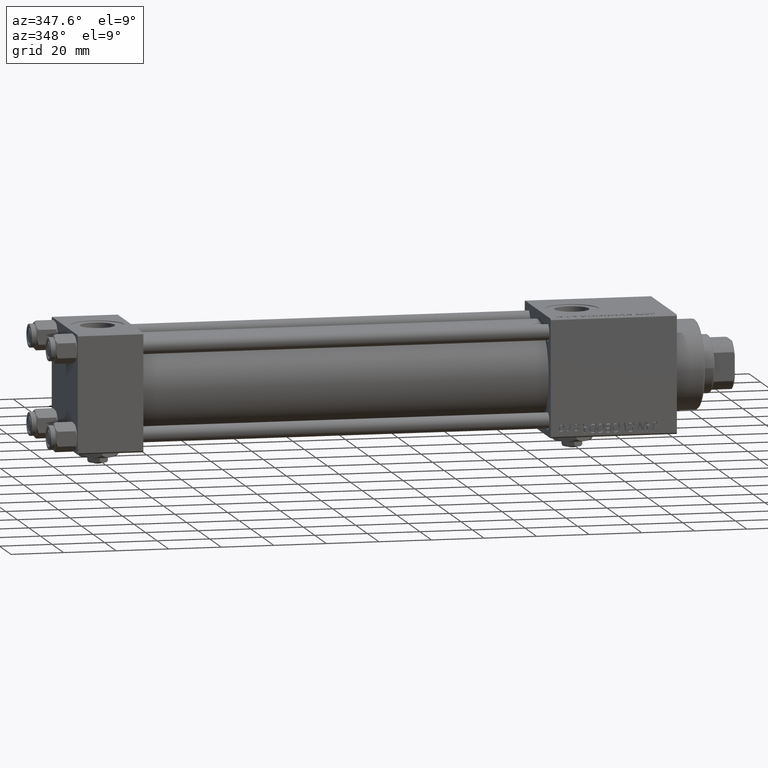
[diagram: clean part render]
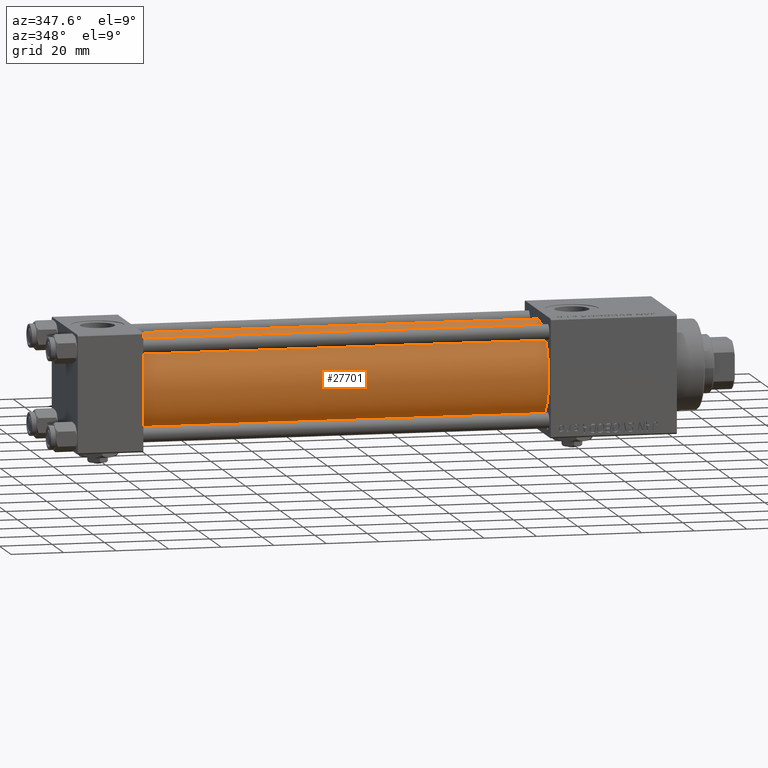
[diagram: same view with one face highlighted and labeled with its STEP entity id]
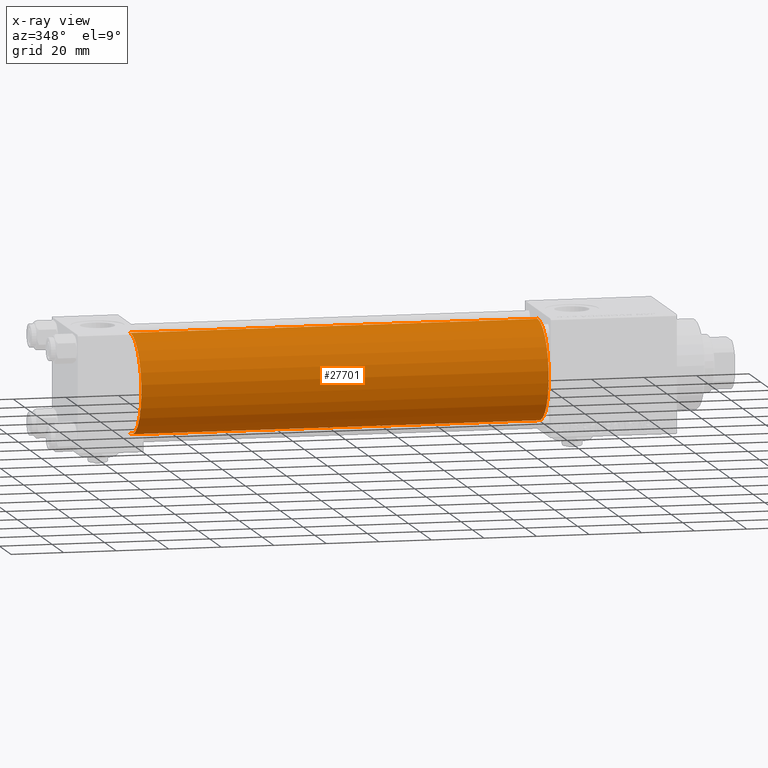
[diagram: x-ray of the same camera — body ghosted, the highlighted face saturated]
A machine part, auxiliary view. The second image highlights one B-rep face of the part: STEP entity #27701.
The next image is the same camera in x-ray: the body ghosted, the highlighted face saturated — about 0% of this face is hidden behind the body in this view.
In plain terms, the highlighted cylindrical surface (partial cylindrical patch) has radius 19 mm, axis along (-1, -0, -0).
Its self-contained STEP definition (entity closure, byte-faithful):
#141 = CIRCLE ( 'NONE', #32191, 19.00000000000000000 ) ;
#1288 = EDGE_LOOP ( 'NONE', ( #50215, #14341, #50256, #20360 ) ) ;
#3120 = DIRECTION ( 'NONE',  ( -1.000000000000000000, -0.000000000000000000, -0.000000000000000000 ) ) ;
#5969 = VERTEX_POINT ( 'NONE', #11007 ) ;
#10028 = CIRCLE ( 'NONE', #27742, 19.00000000000000000 ) ;
#11007 = CARTESIAN_POINT ( 'NONE',  ( 180.0000000000000000, -2.602085213965210642E-15, 19.00000000000000000 ) ) ;
#14341 = ORIENTED_EDGE ( 'NONE', *, *, #21714, .F. ) ;
#17690 = CARTESIAN_POINT ( 'NONE',  ( 180.0000000000000000, -2.602085213965210642E-15, 0.000000000000000000 ) ) ;
#19479 = DIRECTION ( 'NONE',  ( 0.000000000000000000, 0.000000000000000000, 1.000000000000000000 ) ) ;
#20360 = ORIENTED_EDGE ( 'NONE', *, *, #45188, .T. ) ;
#21714 = EDGE_CURVE ( 'NONE', #5969, #24612, #141, .T. ) ;
#24067 = CARTESIAN_POINT ( 'NONE',  ( 180.0000000000000000, -2.752562955852396712E-16, -19.00000000000000000 ) ) ;
#24612 = VERTEX_POINT ( 'NONE', #24067 ) ;
#25059 = DIRECTION ( 'NONE',  ( 1.000000000000000000, -0.000000000000000000, 0.000000000000000000 ) ) ;
#25248 = CARTESIAN_POINT ( 'NONE',  ( 180.0000000000000000, -2.602085213965210642E-15, 19.00000000000000000 ) ) ;
#25503 = VERTEX_POINT ( 'NONE', #27764 ) ;
#26884 = CARTESIAN_POINT ( 'NONE',  ( 180.0000000000000000, -2.752562955852396712E-16, -19.00000000000000000 ) ) ;
#27157 = VERTEX_POINT ( 'NONE', #51493 ) ;
#27701 = ADVANCED_FACE ( 'NONE', ( #32381 ), #32111, .T. ) ;
#27742 = AXIS2_PLACEMENT_3D ( 'NONE', #37178, #25059, #28740 ) ;
#27764 = CARTESIAN_POINT ( 'NONE',  ( 24.99999999999999289, -2.602085213965210642E-15, 19.00000000000000000 ) ) ;
#28494 = EDGE_CURVE ( 'NONE', #24612, #27157, #38994, .T. ) ;
#28740 = DIRECTION ( 'NONE',  ( 0.000000000000000000, 0.000000000000000000, 1.000000000000000000 ) ) ;
#32111 = CYLINDRICAL_SURFACE ( 'NONE', #40723, 19.00000000000000000 ) ;
#32191 = AXIS2_PLACEMENT_3D ( 'NONE', #17690, #33777, #50116 ) ;
#32381 = FACE_OUTER_BOUND ( 'NONE', #1288, .T. ) ;
#33777 = DIRECTION ( 'NONE',  ( 1.000000000000000000, 0.000000000000000000, 0.000000000000000000 ) ) ;
#36555 = VECTOR ( 'NONE', #3120, 1000.000000000000000 ) ;
#37178 = CARTESIAN_POINT ( 'NONE',  ( 24.99999999999999289, -2.602085213965210642E-15, 0.000000000000000000 ) ) ;
#38994 = LINE ( 'NONE', #26884, #36555 ) ;
#40723 = AXIS2_PLACEMENT_3D ( 'NONE', #40804, #52146, #19479 ) ;
#40804 = CARTESIAN_POINT ( 'NONE',  ( 180.0000000000000000, -2.602085213965210642E-15, 0.000000000000000000 ) ) ;
#43170 = VECTOR ( 'NONE', #48445, 1000.000000000000000 ) ;
#45188 = EDGE_CURVE ( 'NONE', #25503, #27157, #10028, .T. ) ;
#47921 = EDGE_CURVE ( 'NONE', #5969, #25503, #48180, .T. ) ;
#48180 = LINE ( 'NONE', #25248, #43170 ) ;
#48445 = DIRECTION ( 'NONE',  ( -1.000000000000000000, -0.000000000000000000, -0.000000000000000000 ) ) ;
#50116 = DIRECTION ( 'NONE',  ( 0.000000000000000000, 0.000000000000000000, -1.000000000000000000 ) ) ;
#50215 = ORIENTED_EDGE ( 'NONE', *, *, #28494, .F. ) ;
#50256 = ORIENTED_EDGE ( 'NONE', *, *, #47921, .T. ) ;
#51493 = CARTESIAN_POINT ( 'NONE',  ( 24.99999999999999289, -2.752562955852396712E-16, -19.00000000000000000 ) ) ;
#52146 = DIRECTION ( 'NONE',  ( -1.000000000000000000, -0.000000000000000000, -0.000000000000000000 ) ) ;